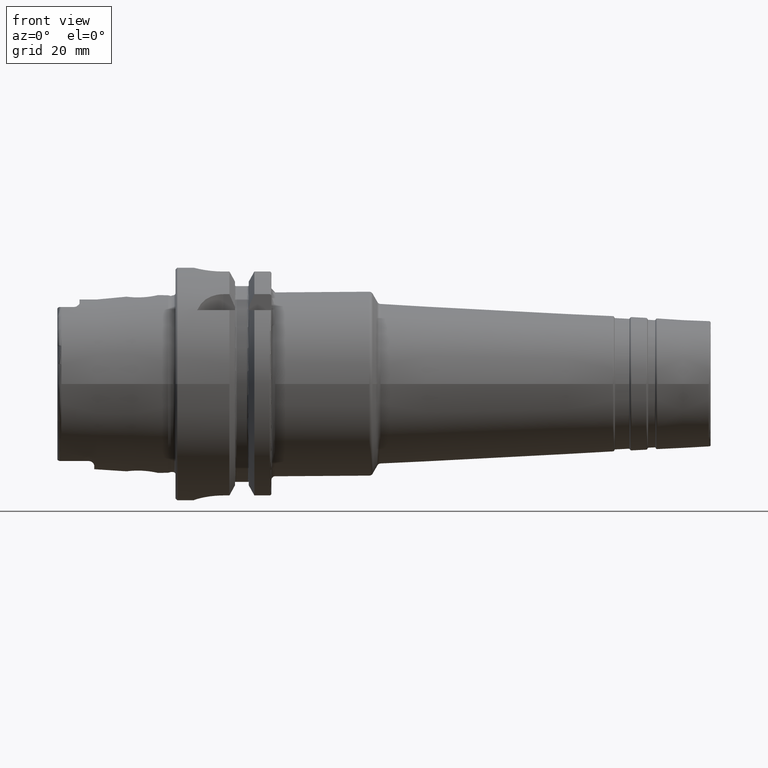
[diagram: clean part render]
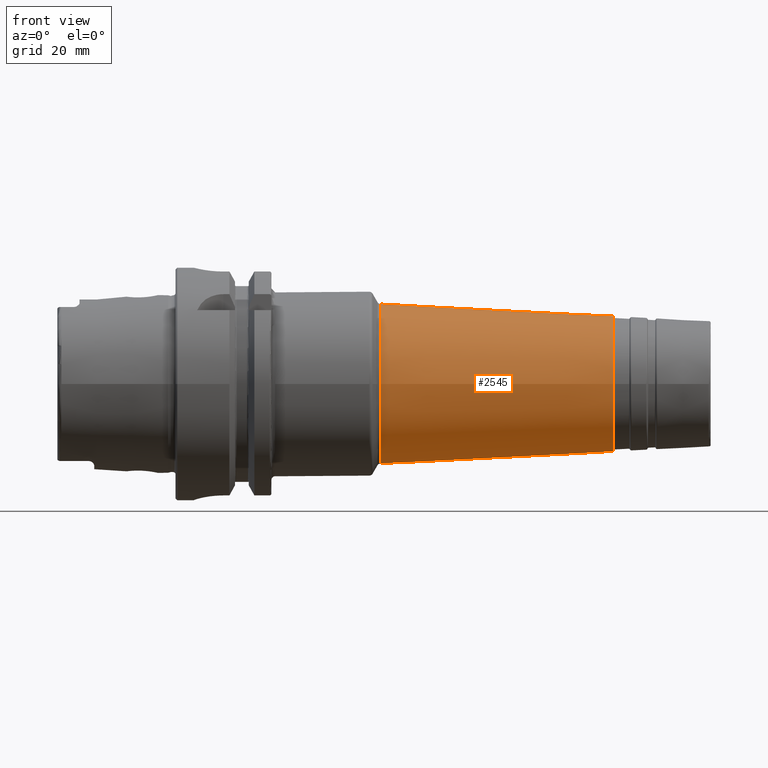
[diagram: same view with one face highlighted and labeled with its STEP entity id]
A machine part, front view. The second image highlights one B-rep face of the part: STEP entity #2545.
In plain terms, the highlighted conical surface has half-angle 3 deg.
Its self-contained STEP definition (entity closure, byte-faithful):
#236=FACE_OUTER_BOUND('',#371,.T.);
#371=EDGE_LOOP('',(#1809,#1810,#1811,#1812,#1813,#1814,#1815,#1816));
#509=LINE('',#4046,#626);
#626=VECTOR('',#3229,20.0461245134913);
#795=CIRCLE('',#2763,18.387635362879);
#796=CIRCLE('',#2764,18.387635362879);
#797=CIRCLE('',#2765,18.387635362879);
#798=CIRCLE('',#2767,21.6882840297356);
#799=CIRCLE('',#2768,21.6882840297356);
#800=CIRCLE('',#2769,21.6882840297356);
#1009=VERTEX_POINT('',#4037);
#1010=VERTEX_POINT('',#4039);
#1011=VERTEX_POINT('',#4041);
#1012=VERTEX_POINT('',#4045);
#1013=VERTEX_POINT('',#4047);
#1014=VERTEX_POINT('',#4049);
#1319=EDGE_CURVE('',#1009,#1010,#795,.T.);
#1320=EDGE_CURVE('',#1010,#1011,#796,.T.);
#1321=EDGE_CURVE('',#1011,#1009,#797,.T.);
#1322=EDGE_CURVE('',#1010,#1012,#509,.T.);
#1323=EDGE_CURVE('',#1013,#1012,#798,.T.);
#1324=EDGE_CURVE('',#1014,#1013,#799,.T.);
#1325=EDGE_CURVE('',#1012,#1014,#800,.T.);
#1809=ORIENTED_EDGE('',*,*,#1321,.F.);
#1810=ORIENTED_EDGE('',*,*,#1320,.F.);
#1811=ORIENTED_EDGE('',*,*,#1322,.T.);
#1812=ORIENTED_EDGE('',*,*,#1323,.F.);
#1813=ORIENTED_EDGE('',*,*,#1324,.F.);
#1814=ORIENTED_EDGE('',*,*,#1325,.F.);
#1815=ORIENTED_EDGE('',*,*,#1322,.F.);
#1816=ORIENTED_EDGE('',*,*,#1319,.F.);
#2511=CONICAL_SURFACE('',#2766,20.0461245134913,0.05235987755983);
#2545=ADVANCED_FACE('',(#236),#2511,.T.);
#2763=AXIS2_PLACEMENT_3D('',#4040,#3221,#3222);
#2764=AXIS2_PLACEMENT_3D('',#4042,#3223,#3224);
#2765=AXIS2_PLACEMENT_3D('',#4043,#3225,#3226);
#2766=AXIS2_PLACEMENT_3D('',#4044,#3227,#3228);
#2767=AXIS2_PLACEMENT_3D('',#4048,#3230,#3231);
#2768=AXIS2_PLACEMENT_3D('',#4050,#3232,#3233);
#2769=AXIS2_PLACEMENT_3D('',#4051,#3234,#3235);
#3221=DIRECTION('center_axis',(1.,0.,0.));
#3222=DIRECTION('ref_axis',(0.,-1.,3.06161699786838E-17));
#3223=DIRECTION('center_axis',(1.,0.,0.));
#3224=DIRECTION('ref_axis',(0.,-1.,3.06161699786838E-17));
#3225=DIRECTION('center_axis',(1.,0.,0.));
#3226=DIRECTION('ref_axis',(0.,-1.,3.06161699786838E-17));
#3227=DIRECTION('center_axis',(-1.,0.,0.));
#3228=DIRECTION('ref_axis',(0.,1.,0.));
#3229=DIRECTION('',(-0.998629534754574,-0.0523359562429439,-6.40930612932372E-18));
#3230=DIRECTION('center_axis',(-1.,0.,0.));
#3231=DIRECTION('ref_axis',(0.,-1.,3.06161699786838E-17));
#3232=DIRECTION('center_axis',(-1.,0.,0.));
#3233=DIRECTION('ref_axis',(0.,-1.,3.06161699786838E-17));
#3234=DIRECTION('center_axis',(-1.,0.,0.));
#3235=DIRECTION('ref_axis',(0.,-1.,3.06161699786838E-17));
#4037=CARTESIAN_POINT('',(118.522339968181,-2.25183587910384E-15,18.387635362879));
#4039=CARTESIAN_POINT('',(118.522339968181,-18.387635362879,-2.25183587910384E-15));
#4040=CARTESIAN_POINT('Origin',(118.522339968181,0.,-2.8147948488798E-15));
#4041=CARTESIAN_POINT('',(118.522339968181,18.387635362879,-1.12591793955192E-15));
#4042=CARTESIAN_POINT('Origin',(118.522339968181,0.,-2.8147948488798E-15));
#4043=CARTESIAN_POINT('Origin',(118.522339968181,0.,-2.8147948488798E-15));
#4044=CARTESIAN_POINT('Origin',(86.8764817902327,0.,0.));
#4045=CARTESIAN_POINT('',(55.5422115977223,-21.6882840297356,-2.65604876160143E-15));
#4046=CARTESIAN_POINT('',(86.8764817902327,-20.0461245134913,-2.45494222207564E-15));
#4047=CARTESIAN_POINT('',(55.5422115977223,21.6882840297356,-6.64012190400359E-15));
#4048=CARTESIAN_POINT('Origin',(55.5422115977223,0.,-3.32006095200179E-15));
#4049=CARTESIAN_POINT('',(55.5422115977223,-2.65604876160143E-15,21.6882840297356));
#4050=CARTESIAN_POINT('Origin',(55.5422115977223,0.,-3.32006095200179E-15));
#4051=CARTESIAN_POINT('Origin',(55.5422115977223,0.,-3.32006095200179E-15));